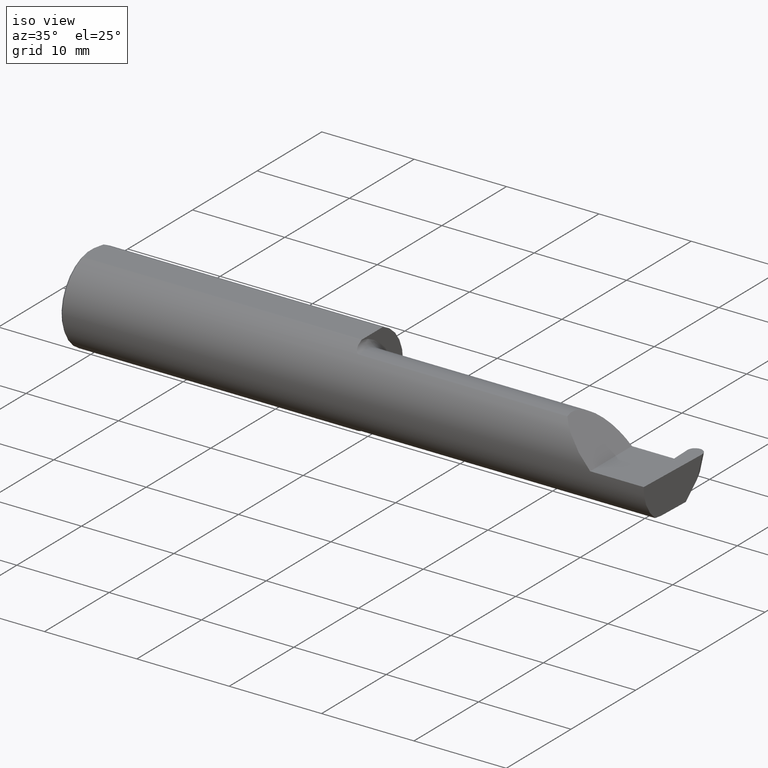
[diagram: clean part render]
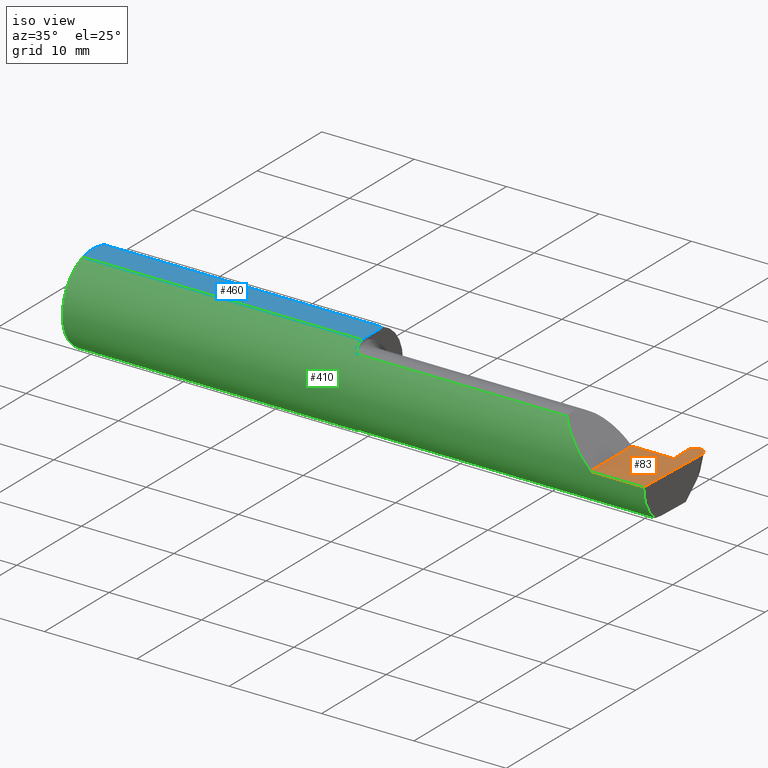
[diagram: same view with three faces highlighted in distinct colors, each labeled with its STEP entity id]
A machine part, iso view with three faces highlighted in distinct colors.
Their STEP definitions:

[orange] entity #83 — the highlighted planar face has unit normal (-0, 0, -1).
#1 = ORIENTED_EDGE ( 'NONE', *, *, #168, .F. ) ;
#7 = DIRECTION ( 'NONE',  ( -1.224646799147353947E-16, 0.000000000000000000, -1.000000000000000000 ) ) ;
#8 = CARTESIAN_POINT ( 'NONE',  ( 2.436235694025149279, 0.1704329581048291409, 7.809760431069554296E-18 ) ) ;
#35 = LINE ( 'NONE', #126, #350 ) ;
#47 = VERTEX_POINT ( 'NONE', #277 ) ;
#48 = EDGE_CURVE ( 'NONE', #344, #690, #270, .T. ) ;
#59 = ORIENTED_EDGE ( 'NONE', *, *, #671, .F. ) ;
#61 = VERTEX_POINT ( 'NONE', #660 ) ;
#74 = LINE ( 'NONE', #399, #316 ) ;
#83 = ADVANCED_FACE ( 'NONE', ( #213 ), #487, .F. ) ;
#88 = CARTESIAN_POINT ( 'NONE',  ( 2.468721519699850209, 0.1846500000000000363, 0.000000000000000000 ) ) ;
#92 = ORIENTED_EDGE ( 'NONE', *, *, #48, .T. ) ;
#115 = CARTESIAN_POINT ( 'NONE',  ( 2.499932917084233264, 0.1506083980881225415, 0.000000000000000000 ) ) ;
#116 = CARTESIAN_POINT ( 'NONE',  ( 2.436927982915767288, 0.1506083980881225137, 0.000000000000000000 ) ) ;
#123 = DIRECTION ( 'NONE',  ( -0.03489949670249308661, -0.9993908270190960952, 0.000000000000000000 ) ) ;
#126 = CARTESIAN_POINT ( 'NONE',  ( -0.001039370078739994957, 0.1846500000000000363, 0.000000000000000000 ) ) ;
#129 = VERTEX_POINT ( 'NONE', #177 ) ;
#147 = LINE ( 'NONE', #481, #324 ) ;
#152 = ORIENTED_EDGE ( 'NONE', *, *, #429, .F. ) ;
#161 = VERTEX_POINT ( 'NONE', #501 ) ;
#163 = CARTESIAN_POINT ( 'NONE',  ( 2.436927982915767288, 0.1506083980881225137, 0.000000000000000000 ) ) ;
#166 = CARTESIAN_POINT ( 'NONE',  ( 2.439859874782298377, 0.06664999999999998703, 0.000000000000000000 ) ) ;
#168 = EDGE_CURVE ( 'NONE', #61, #129, #342, .T. ) ;
#172 = DIRECTION ( 'NONE',  ( 1.000000000000000000, 6.902170632284375996E-17, 0.000000000000000000 ) ) ;
#175 = VERTEX_POINT ( 'NONE', #506 ) ;
#177 = CARTESIAN_POINT ( 'NONE',  ( 2.488131149766799943, -0.1873499999999999888, 0.000000000000000000 ) ) ;
#213 = FACE_OUTER_BOUND ( 'NONE', #242, .T. ) ;
#216 = ORIENTED_EDGE ( 'NONE', *, *, #269, .F. ) ;
#220 = VERTEX_POINT ( 'NONE', #622 ) ;
#223 = VECTOR ( 'NONE', #123, 39.37007874015747433 ) ;
#242 = EDGE_LOOP ( 'NONE', ( #247, #92, #216, #59, #254, #152, #251, #1, #601 ) ) ;
#247 = ORIENTED_EDGE ( 'NONE', *, *, #390, .F. ) ;
#251 = ORIENTED_EDGE ( 'NONE', *, *, #489, .F. ) ;
#254 = ORIENTED_EDGE ( 'NONE', *, *, #380, .F. ) ;
#258 = EDGE_CURVE ( 'NONE', #61, #420, #495, .T. ) ;
#264 = VECTOR ( 'NONE', #572, 39.37007874015748143 ) ;
#269 = EDGE_CURVE ( 'NONE', #175, #690, #147, .T. ) ;
#270 =( BOUNDED_CURVE ( )  B_SPLINE_CURVE ( 3, ( #499, #497, #8, #163 ),
 .UNSPECIFIED., .F., .T. ) 
 B_SPLINE_CURVE_WITH_KNOTS ( ( 4, 4 ),
 ( 3.057488531086369754, 4.656081685705084183 ),
 .UNSPECIFIED. ) 
 CURVE ( )  GEOMETRIC_REPRESENTATION_ITEM ( )  RATIONAL_B_SPLINE_CURVE ( ( 1.000000000000000000, 0.7981407609938104830, 0.7981407609938104830, 1.000000000000000000 ) ) 
 REPRESENTATION_ITEM ( '' )  );
#277 = CARTESIAN_POINT ( 'NONE',  ( 2.260000000000000231, -0.1873499999999999888, 2.939152317953647352E-17 ) ) ;
#285 = DIRECTION ( 'NONE',  ( 1.000000000000000000, 7.488084056613327882E-15, -0.000000000000000000 ) ) ;
#316 = VECTOR ( 'NONE', #172, 39.37007874015748143 ) ;
#324 = VECTOR ( 'NONE', #369, 39.37007874015748143 ) ;
#339 = CARTESIAN_POINT ( 'NONE',  ( 2.500625205974851273, 0.1704329581048291409, -1.247844596711688058E-17 ) ) ;
#342 = LINE ( 'NONE', #613, #223 ) ;
#344 = VERTEX_POINT ( 'NONE', #533 ) ;
#350 = VECTOR ( 'NONE', #567, 39.37007874015748143 ) ;
#369 = DIRECTION ( 'NONE',  ( -0.03489949670249346131, 0.9993908270190959842, -0.000000000000000000 ) ) ;
#380 = EDGE_CURVE ( 'NONE', #161, #220, #74, .T. ) ;
#390 = EDGE_CURVE ( 'NONE', #344, #420, #35, .T. ) ;
#399 = CARTESIAN_POINT ( 'NONE',  ( 1.199999999999999956, 0.06664999999999984825, 1.592040838891559588E-16 ) ) ;
#414 = DIRECTION ( 'NONE',  ( -0.000000000000000000, 1.000000000000000000, -0.000000000000000000 ) ) ;
#420 = VERTEX_POINT ( 'NONE', #695 ) ;
#423 = VECTOR ( 'NONE', #285, 39.37007874015748143 ) ;
#429 = EDGE_CURVE ( 'NONE', #47, #161, #691, .T. ) ;
#441 = CARTESIAN_POINT ( 'NONE',  ( 2.500000000000000000, -0.2500000000000000555, 0.000000000000000000 ) ) ;
#452 = CARTESIAN_POINT ( 'NONE',  ( 2.260000000000000231, -0.2500000000000000555, 2.939152317953647352E-17 ) ) ;
#481 = CARTESIAN_POINT ( 'NONE',  ( 2.436880131316879083, 0.1519786885938757270, 0.000000000000000000 ) ) ;
#487 = PLANE ( 'NONE',  #608 ) ;
#489 = EDGE_CURVE ( 'NONE', #129, #47, #504, .T. ) ;
#495 =( BOUNDED_CURVE ( )  B_SPLINE_CURVE ( 3, ( #115, #339, #646, #88 ),
 .UNSPECIFIED., .F., .T. ) 
 B_SPLINE_CURVE_WITH_KNOTS ( ( 4, 4 ),
 ( 1.627103621474502049, 3.225696776093215590 ),
 .UNSPECIFIED. ) 
 CURVE ( )  GEOMETRIC_REPRESENTATION_ITEM ( )  RATIONAL_B_SPLINE_CURVE ( ( 1.000000000000000000, 0.7981407609938108161, 0.7981407609938108161, 1.000000000000000000 ) ) 
 REPRESENTATION_ITEM ( '' )  );
#497 = CARTESIAN_POINT ( 'NONE',  ( 2.449270737010766030, 0.1846499999999998975, 6.213428064161130250E-18 ) ) ;
#499 = CARTESIAN_POINT ( 'NONE',  ( 2.468139380300150343, 0.1846500000000000363, 0.000000000000000000 ) ) ;
#501 = CARTESIAN_POINT ( 'NONE',  ( 2.260000000000000231, 0.06664999999999993152, 1.592040838891559588E-16 ) ) ;
#504 = LINE ( 'NONE', #558, #264 ) ;
#506 = CARTESIAN_POINT ( 'NONE',  ( 2.439859874782298377, 0.06664999999999998703, 0.000000000000000000 ) ) ;
#508 = LINE ( 'NONE', #166, #423 ) ;
#533 = CARTESIAN_POINT ( 'NONE',  ( 2.468139380300150343, 0.1846500000000000363, 0.000000000000000000 ) ) ;
#558 = CARTESIAN_POINT ( 'NONE',  ( 3.749399456654646757E-32, -0.1873499999999999610, 3.061616997868383634E-16 ) ) ;
#567 = DIRECTION ( 'NONE',  ( 1.000000000000000000, -0.000000000000000000, -0.000000000000000000 ) ) ;
#572 = DIRECTION ( 'NONE',  ( -1.000000000000000000, -0.000000000000000000, -0.000000000000000000 ) ) ;
#601 = ORIENTED_EDGE ( 'NONE', *, *, #258, .T. ) ;
#608 = AXIS2_PLACEMENT_3D ( 'NONE', #441, #7, #663 ) ;
#613 = CARTESIAN_POINT ( 'NONE',  ( 2.499980768683121024, 0.1519786885938757826, 0.000000000000000000 ) ) ;
#622 = CARTESIAN_POINT ( 'NONE',  ( 2.430739223982273156, 0.06664999999999991764, 0.000000000000000000 ) ) ;
#640 = VECTOR ( 'NONE', #414, 39.37007874015748143 ) ;
#646 = CARTESIAN_POINT ( 'NONE',  ( 2.487590162989234077, 0.1846499999999998698, -1.088211360020845268E-17 ) ) ;
#660 = CARTESIAN_POINT ( 'NONE',  ( 2.499932917084233264, 0.1506083980881225415, 0.000000000000000000 ) ) ;
#663 = DIRECTION ( 'NONE',  ( -1.000000000000000000, 0.000000000000000000, 1.224646799147353947E-16 ) ) ;
#671 = EDGE_CURVE ( 'NONE', #220, #175, #508, .T. ) ;
#690 = VERTEX_POINT ( 'NONE', #116 ) ;
#691 = LINE ( 'NONE', #452, #640 ) ;
#695 = CARTESIAN_POINT ( 'NONE',  ( 2.468721519699850209, 0.1846500000000000363, 0.000000000000000000 ) ) ;

[blue] entity #460 — the highlighted planar face has unit normal (0, 0, 1).
#33 = ORIENTED_EDGE ( 'NONE', *, *, #117, .T. ) ;
#67 = LINE ( 'NONE', #278, #237 ) ;
#69 = EDGE_LOOP ( 'NONE', ( #150, #433, #33, #222, #281, #426 ) ) ;
#70 = CARTESIAN_POINT ( 'NONE',  ( 2.876828993045917215, 0.1873499999999998500, 0.1763499999999999235 ) ) ;
#79 = DIRECTION ( 'NONE',  ( 1.000000000000000000, 0.000000000000000000, -0.000000000000000000 ) ) ;
#82 = FACE_OUTER_BOUND ( 'NONE', #69, .T. ) ;
#85 = CARTESIAN_POINT ( 'NONE',  ( 0.000000000000000000, 0.01880691362238934988, 0.1763499999999999235 ) ) ;
#90 = VERTEX_POINT ( 'NONE', #173 ) ;
#100 = EDGE_CURVE ( 'NONE', #124, #320, #559, .T. ) ;
#117 = EDGE_CURVE ( 'NONE', #90, #184, #67, .T. ) ;
#124 = VERTEX_POINT ( 'NONE', #573 ) ;
#135 = PLANE ( 'NONE',  #215 ) ;
#150 = ORIENTED_EDGE ( 'NONE', *, *, #571, .T. ) ;
#173 = CARTESIAN_POINT ( 'NONE',  ( 1.199999999999999956, 0.06325108694718235836, 0.1763499999999999235 ) ) ;
#184 = VERTEX_POINT ( 'NONE', #556 ) ;
#194 = VECTOR ( 'NONE', #584, 39.37007874015748143 ) ;
#211 = CARTESIAN_POINT ( 'NONE',  ( 1.199999999999999956, -0.06325108694718287183, 0.1763499999999999235 ) ) ;
#215 = AXIS2_PLACEMENT_3D ( 'NONE', #70, #575, #79 ) ;
#222 = ORIENTED_EDGE ( 'NONE', *, *, #347, .F. ) ;
#225 = CARTESIAN_POINT ( 'NONE',  ( 0.005151108632379722968, -0.04888864921576022843, 0.1763499999999999235 ) ) ;
#237 = VECTOR ( 'NONE', #283, 39.37007874015748143 ) ;
#248 = DIRECTION ( 'NONE',  ( 1.000000000000000000, 0.000000000000000000, 0.000000000000000000 ) ) ;
#249 = CARTESIAN_POINT ( 'NONE',  ( 1.199999999999999956, 0.1873499999999997390, 0.1763499999999999235 ) ) ;
#255 = B_SPLINE_CURVE_WITH_KNOTS ( 'NONE', 3,
 ( #85, #363, #474, #310 ),
 .UNSPECIFIED., .F., .F.,
 ( 4, 4 ),
 ( 0.01188664626022242071, 0.01304646959483746725 ),
 .UNSPECIFIED. ) ;
#278 = CARTESIAN_POINT ( 'NONE',  ( 0.000000000000000000, 0.06325108694718235836, 0.1763499999999999235 ) ) ;
#281 = ORIENTED_EDGE ( 'NONE', *, *, #100, .F. ) ;
#283 = DIRECTION ( 'NONE',  ( -1.000000000000000000, -0.000000000000000000, -0.000000000000000000 ) ) ;
#310 = CARTESIAN_POINT ( 'NONE',  ( 0.01000000000000013205, 0.06325108694718235836, 0.1763499999999999235 ) ) ;
#320 = VERTEX_POINT ( 'NONE', #424 ) ;
#332 = EDGE_CURVE ( 'NONE', #551, #90, #431, .T. ) ;
#347 = EDGE_CURVE ( 'NONE', #320, #184, #255, .T. ) ;
#352 = DIRECTION ( 'NONE',  ( -0.000000000000000000, 1.000000000000000000, -0.000000000000000000 ) ) ;
#358 = CARTESIAN_POINT ( 'NONE',  ( 0.01000000000000013205, -0.06325108694718235836, 0.1763499999999999235 ) ) ;
#361 = CARTESIAN_POINT ( 'NONE',  ( 0.01000000000000013205, -0.06325108694718235836, 0.1763499999999999235 ) ) ;
#363 = CARTESIAN_POINT ( 'NONE',  ( 0.001616639753276021213, 0.03405189565400638246, 0.1763499999999999235 ) ) ;
#396 = CARTESIAN_POINT ( 'NONE',  ( 0.000000000000000000, 0.1873499999999998500, 0.1763499999999999235 ) ) ;
#424 = CARTESIAN_POINT ( 'NONE',  ( 0.000000000000000000, 0.01880691362238934988, 0.1763499999999999235 ) ) ;
#426 = ORIENTED_EDGE ( 'NONE', *, *, #444, .F. ) ;
#431 = LINE ( 'NONE', #249, #194 ) ;
#433 = ORIENTED_EDGE ( 'NONE', *, *, #332, .T. ) ;
#444 = EDGE_CURVE ( 'NONE', #583, #124, #674, .T. ) ;
#460 = ADVANCED_FACE ( 'NONE', ( #82 ), #135, .T. ) ;
#474 = CARTESIAN_POINT ( 'NONE',  ( 0.005155213631852488369, 0.04890080824240059659, 0.1763499999999999235 ) ) ;
#505 = VECTOR ( 'NONE', #352, 39.37007874015748143 ) ;
#525 = CARTESIAN_POINT ( 'NONE',  ( 0.001595548104417008695, -0.03385300050298640367, 0.1763499999999999235 ) ) ;
#551 = VERTEX_POINT ( 'NONE', #211 ) ;
#556 = CARTESIAN_POINT ( 'NONE',  ( 0.01000000000000013205, 0.06325108694718235836, 0.1763499999999999235 ) ) ;
#559 = LINE ( 'NONE', #396, #505 ) ;
#571 = EDGE_CURVE ( 'NONE', #583, #551, #657, .T. ) ;
#573 = CARTESIAN_POINT ( 'NONE',  ( 0.000000000000000000, -0.01880691362238934641, 0.1763499999999999235 ) ) ;
#575 = DIRECTION ( 'NONE',  ( 0.000000000000000000, 0.000000000000000000, 1.000000000000000000 ) ) ;
#583 = VERTEX_POINT ( 'NONE', #361 ) ;
#584 = DIRECTION ( 'NONE',  ( -6.902170632284375996E-17, 1.000000000000000000, 0.000000000000000000 ) ) ;
#620 = CARTESIAN_POINT ( 'NONE',  ( 0.000000000000000000, -0.01880691362238934641, 0.1763499999999999235 ) ) ;
#655 = CARTESIAN_POINT ( 'NONE',  ( 0.000000000000000000, -0.06325108694718235836, 0.1763499999999999235 ) ) ;
#657 = LINE ( 'NONE', #655, #662 ) ;
#662 = VECTOR ( 'NONE', #248, 39.37007874015748143 ) ;
#674 = B_SPLINE_CURVE_WITH_KNOTS ( 'NONE', 3,
 ( #358, #225, #525, #620 ),
 .UNSPECIFIED., .F., .F.,
 ( 4, 4 ),
 ( 0.009771445421851331775, 0.01092787937989104369 ),
 .UNSPECIFIED. ) ;

[green] entity #410 — the highlighted cylindrical surface (partial cylindrical patch) has radius 4.7587 mm, axis along (-1, -0, -0).
#2 = ORIENTED_EDGE ( 'NONE', *, *, #165, .F. ) ;
#15 = CARTESIAN_POINT ( 'NONE',  ( 1.222161949849308371, -0.1172600179964063821, 0.1461167706989258686 ) ) ;
#20 = FACE_OUTER_BOUND ( 'NONE', #484, .T. ) ;
#22 = AXIS2_PLACEMENT_3D ( 'NONE', #60, #55, #492 ) ;
#25 = CARTESIAN_POINT ( 'NONE',  ( 1.200353553376445115, -0.07868116735658681193, 0.1701139256562800572 ) ) ;
#26 = VERTEX_POINT ( 'NONE', #267 ) ;
#31 = CARTESIAN_POINT ( 'NONE',  ( 1.219511795768554840, -0.1163687266324236191, -0.1468371510166787963 ) ) ;
#32 = DIRECTION ( 'NONE',  ( -1.000000000000000000, -6.902170632284375996E-17, -0.000000000000000000 ) ) ;
#47 = VERTEX_POINT ( 'NONE', #277 ) ;
#55 = DIRECTION ( 'NONE',  ( 1.000000000000000000, 6.902170632284375996E-17, 0.000000000000000000 ) ) ;
#60 = CARTESIAN_POINT ( 'NONE',  ( 1.199999999999999956, 0.000000000000000000, 0.000000000000000000 ) ) ;
#62 = CARTESIAN_POINT ( 'NONE',  ( 1.225000000000000089, -0.1172600179964007477, 0.1461167706989301984 ) ) ;
#64 = CARTESIAN_POINT ( 'NONE',  ( 0.01000000000000013205, 0.000000000000000000, 0.000000000000000000 ) ) ;
#67 = LINE ( 'NONE', #278, #237 ) ;
#71 = CIRCLE ( 'NONE', #704, 0.1873499999999999888 ) ;
#87 = CARTESIAN_POINT ( 'NONE',  ( 2.488026713523222799, -0.1172600179964006922, -0.1461167706989302817 ) ) ;
#90 = VERTEX_POINT ( 'NONE', #173 ) ;
#117 = EDGE_CURVE ( 'NONE', #90, #184, #67, .T. ) ;
#118 = CARTESIAN_POINT ( 'NONE',  ( 1.202960551809340251, -0.09317341542745753713, -0.1626248379125196653 ) ) ;
#122 = DIRECTION ( 'NONE',  ( 0.000000000000000000, 0.000000000000000000, 1.000000000000000000 ) ) ;
#129 = VERTEX_POINT ( 'NONE', #177 ) ;
#130 = CARTESIAN_POINT ( 'NONE',  ( 1.199999999999999956, -0.06851976604679066440, -0.1743704796142198643 ) ) ;
#133 = ORIENTED_EDGE ( 'NONE', *, *, #683, .F. ) ;
#137 = CARTESIAN_POINT ( 'NONE',  ( 2.488026713523222799, -0.1172600179964006922, -0.1461167706989302817 ) ) ;
#142 = ORIENTED_EDGE ( 'NONE', *, *, #489, .T. ) ;
#165 = EDGE_CURVE ( 'NONE', #532, #201, #568, .T. ) ;
#171 = ORIENTED_EDGE ( 'NONE', *, *, #245, .F. ) ;
#173 = CARTESIAN_POINT ( 'NONE',  ( 1.199999999999999956, 0.06325108694718235836, 0.1763499999999999235 ) ) ;
#177 = CARTESIAN_POINT ( 'NONE',  ( 2.488131149766799943, -0.1873499999999999888, 0.000000000000000000 ) ) ;
#184 = VERTEX_POINT ( 'NONE', #556 ) ;
#185 = CARTESIAN_POINT ( 'NONE',  ( 0.000000000000000000, 0.000000000000000000, 0.000000000000000000 ) ) ;
#188 = CARTESIAN_POINT ( 'NONE',  ( 0.01000000000000013205, 0.000000000000000000, 0.000000000000000000 ) ) ;
#198 = ORIENTED_EDGE ( 'NONE', *, *, #362, .F. ) ;
#199 = EDGE_CURVE ( 'NONE', #583, #26, #552, .T. ) ;
#201 = VERTEX_POINT ( 'NONE', #346 ) ;
#211 = CARTESIAN_POINT ( 'NONE',  ( 1.199999999999999956, -0.06325108694718287183, 0.1763499999999999235 ) ) ;
#214 = CARTESIAN_POINT ( 'NONE',  ( 2.488131149766799943, -0.1873499999999999888, 0.000000000000000000 ) ) ;
#218 = ORIENTED_EDGE ( 'NONE', *, *, #571, .F. ) ;
#228 = ORIENTED_EDGE ( 'NONE', *, *, #480, .F. ) ;
#229 = CARTESIAN_POINT ( 'NONE',  ( 1.213203859946833996, -0.1120371980050639676, -0.1501764597936558199 ) ) ;
#231 = ORIENTED_EDGE ( 'NONE', *, *, #117, .F. ) ;
#232 = CARTESIAN_POINT ( 'NONE',  ( 1.206304331342287650, -0.1022198306720692035, -0.1570962426853817762 ) ) ;
#233 = EDGE_CURVE ( 'NONE', #47, #201, #427, .T. ) ;
#237 = VECTOR ( 'NONE', #283, 39.37007874015748143 ) ;
#239 = CARTESIAN_POINT ( 'NONE',  ( 2.202189699843948745, -0.1873500000000000443, 0.05781030015605096578 ) ) ;
#244 = CARTESIAN_POINT ( 'NONE',  ( 1.222174967710399462, -0.1172600179964008033, -0.1461167706989301707 ) ) ;
#245 = EDGE_CURVE ( 'NONE', #587, #394, #693, .T. ) ;
#246 = DIRECTION ( 'NONE',  ( 1.000000000000000000, 6.902170632284375996E-17, 0.000000000000000000 ) ) ;
#248 = DIRECTION ( 'NONE',  ( 1.000000000000000000, 0.000000000000000000, 0.000000000000000000 ) ) ;
#264 = VECTOR ( 'NONE', #572, 39.37007874015748143 ) ;
#265 = CARTESIAN_POINT ( 'NONE',  ( 2.487084196965268390, -0.1623470442677541203, -0.1099340280425337990 ) ) ;
#267 = CARTESIAN_POINT ( 'NONE',  ( 0.01000000000000013205, 0.000000000000000000, -0.1873499999999999888 ) ) ;
#268 = CARTESIAN_POINT ( 'NONE',  ( 1.225000000000000089, -0.1172600179964007477, 0.1461167706989301984 ) ) ;
#277 = CARTESIAN_POINT ( 'NONE',  ( 2.260000000000000231, -0.1873499999999999888, 2.939152317953647352E-17 ) ) ;
#278 = CARTESIAN_POINT ( 'NONE',  ( 0.000000000000000000, 0.06325108694718235836, 0.1763499999999999235 ) ) ;
#280 = CARTESIAN_POINT ( 'NONE',  ( 1.208475602106621416, -0.1064978748893407601, 0.1542035505680382779 ) ) ;
#283 = DIRECTION ( 'NONE',  ( -1.000000000000000000, -0.000000000000000000, -0.000000000000000000 ) ) ;
#294 = CARTESIAN_POINT ( 'NONE',  ( 1.225000000000000089, -0.1172600179964008171, -0.1461167706989301984 ) ) ;
#295 = CARTESIAN_POINT ( 'NONE',  ( 2.113883229301068312, -0.1172600179964008726, 0.1461167706989301429 ) ) ;
#298 = CARTESIAN_POINT ( 'NONE',  ( 1.215028532764138580, -0.1137241120808236416, -0.1488947809299402958 ) ) ;
#299 = CARTESIAN_POINT ( 'NONE',  ( 2.260000000000000231, -0.1873499999999999888, 2.939152317953647352E-17 ) ) ;
#302 = VECTOR ( 'NONE', #462, 39.37007874015748143 ) ;
#303 = DIRECTION ( 'NONE',  ( 1.000000000000000000, 0.000000000000000000, 0.000000000000000000 ) ) ;
#305 = CIRCLE ( 'NONE', #22, 0.1873499999999999888 ) ;
#318 = ORIENTED_EDGE ( 'NONE', *, *, #233, .T. ) ;
#333 = CARTESIAN_POINT ( 'NONE',  ( 1.206287624083520305, -0.1021858045380147212, 0.1571187174372874473 ) ) ;
#335 = VECTOR ( 'NONE', #32, 39.37007874015748143 ) ;
#336 = CARTESIAN_POINT ( 'NONE',  ( 1.201829077486400443, -0.08839624499054657414, 0.1652742498708036911 ) ) ;
#341 = CARTESIAN_POINT ( 'NONE',  ( 1.199999999999999956, -0.07368234487347199990, -0.1723418180300747837 ) ) ;
#345 = DIRECTION ( 'NONE',  ( 0.000000000000000000, 0.000000000000000000, -1.000000000000000000 ) ) ;
#346 = CARTESIAN_POINT ( 'NONE',  ( 2.113883229301068312, -0.1172600179964008726, 0.1461167706989301429 ) ) ;
#354 = CARTESIAN_POINT ( 'NONE',  ( 1.225000000000000089, -0.1172600179964008171, -0.1461167706989301984 ) ) ;
#361 = CARTESIAN_POINT ( 'NONE',  ( 0.01000000000000013205, -0.06325108694718235836, 0.1763499999999999235 ) ) ;
#362 = EDGE_CURVE ( 'NONE', #397, #90, #702, .T. ) ;
#373 = B_SPLINE_CURVE_WITH_KNOTS ( 'NONE', 3,
 ( #392, #401, #25, #336, #667, #333, #280, #454, #560, #386, #15, #62 ),
 .UNSPECIFIED., .F., .F.,
 ( 4, 2, 2, 2, 2, 4 ),
 ( 4.423516731080811751E-05, 0.0004615475116586734692, 0.0008788598560065388277, 0.001296172200354404240, 0.001504828372528336025, 0.001713484544702268027 ),
 .UNSPECIFIED. ) ;
#386 = CARTESIAN_POINT ( 'NONE',  ( 1.219481469043492083, -0.1163560528186167731, 0.1468472430636322268 ) ) ;
#392 = CARTESIAN_POINT ( 'NONE',  ( 1.199999999999999956, -0.06851976604679066440, 0.1743704796142198643 ) ) ;
#394 = VERTEX_POINT ( 'NONE', #294 ) ;
#397 = VERTEX_POINT ( 'NONE', #616 ) ;
#398 = EDGE_CURVE ( 'NONE', #26, #184, #71, .T. ) ;
#400 = DIRECTION ( 'NONE',  ( 0.000000000000000000, 0.000000000000000000, -1.000000000000000000 ) ) ;
#401 = CARTESIAN_POINT ( 'NONE',  ( 1.199999999999999956, -0.07367581953296710451, 0.1723443821957855171 ) ) ;
#407 = AXIS2_PLACEMENT_3D ( 'NONE', #64, #453, #400 ) ;
#409 = CARTESIAN_POINT ( 'NONE',  ( 1.208439486659306672, -0.1064616213911159376, -0.1542305641651500192 ) ) ;
#410 = ADVANCED_FACE ( 'NONE', ( #20 ), #520, .T. ) ;
#427 =( BOUNDED_CURVE ( )  B_SPLINE_CURVE ( 3, ( #299, #239, #467, #295 ),
 .UNSPECIFIED., .F., .T. ) 
 B_SPLINE_CURVE_WITH_KNOTS ( ( 4, 4 ),
 ( 4.712388980384688786, 5.606916381293135743 ),
 .UNSPECIFIED. ) 
 CURVE ( )  GEOMETRIC_REPRESENTATION_ITEM ( )  RATIONAL_B_SPLINE_CURVE ( ( 1.000000000000000000, 0.9344226172588803170, 0.9344226172588803170, 1.000000000000000000 ) ) 
 REPRESENTATION_ITEM ( '' )  );
#432 = VERTEX_POINT ( 'NONE', #562 ) ;
#434 = B_SPLINE_CURVE_WITH_KNOTS ( 'NONE', 3,
 ( #354, #244, #31, #298, #229, #409, #232, #118, #687, #625, #341, #130 ),
 .UNSPECIFIED., .F., .F.,
 ( 4, 2, 2, 2, 2, 4 ),
 ( 1.967976973692733563E-07, 0.0002120314145722270013, 0.0004238660314470846929, 0.0008475352651968001303, 0.001271204498946515568, 0.001694873732696231114 ),
 .UNSPECIFIED. ) ;
#449 = CARTESIAN_POINT ( 'NONE',  ( 1.830930450000000098, -0.1172600179964007477, 0.1461167706989302817 ) ) ;
#453 = DIRECTION ( 'NONE',  ( 1.000000000000000000, 0.000000000000000000, 0.000000000000000000 ) ) ;
#454 = CARTESIAN_POINT ( 'NONE',  ( 1.213163223656403167, -0.1119926267047279267, 0.1502091925606061362 ) ) ;
#462 = DIRECTION ( 'NONE',  ( 1.000000000000000000, 6.902170632284375996E-17, 0.000000000000000000 ) ) ;
#467 = CARTESIAN_POINT ( 'NONE',  ( 2.150065971957465294, -0.1623470442677542591, 0.1099340280425336325 ) ) ;
#471 = DIRECTION ( 'NONE',  ( 0.000000000000000000, 1.000000000000000000, 0.000000000000000000 ) ) ;
#480 = EDGE_CURVE ( 'NONE', #394, #397, #434, .T. ) ;
#484 = EDGE_LOOP ( 'NONE', ( #171, #654, #142, #318, #2, #133, #656, #218, #605, #537, #231, #198, #228 ) ) ;
#489 = EDGE_CURVE ( 'NONE', #129, #47, #504, .T. ) ;
#492 = DIRECTION ( 'NONE',  ( 0.000000000000000000, 1.000000000000000000, 0.000000000000000000 ) ) ;
#504 = LINE ( 'NONE', #558, #264 ) ;
#520 = CYLINDRICAL_SURFACE ( 'NONE', #578, 0.1873499999999999888 ) ;
#529 = CARTESIAN_POINT ( 'NONE',  ( 2.487121452143545408, -0.1873499999999999610, -0.05781030015605116007 ) ) ;
#532 = VERTEX_POINT ( 'NONE', #268 ) ;
#537 = ORIENTED_EDGE ( 'NONE', *, *, #398, .T. ) ;
#551 = VERTEX_POINT ( 'NONE', #211 ) ;
#552 = CIRCLE ( 'NONE', #407, 0.1873499999999999888 ) ;
#553 = AXIS2_PLACEMENT_3D ( 'NONE', #700, #246, #471 ) ;
#556 = CARTESIAN_POINT ( 'NONE',  ( 0.01000000000000013205, 0.06325108694718235836, 0.1763499999999999235 ) ) ;
#558 = CARTESIAN_POINT ( 'NONE',  ( 3.749399456654646757E-32, -0.1873499999999999610, 3.061616997868383634E-16 ) ) ;
#560 = CARTESIAN_POINT ( 'NONE',  ( 1.215004157323697376, -0.1137044537483317963, 0.1489098419202427304 ) ) ;
#562 = CARTESIAN_POINT ( 'NONE',  ( 1.199999999999999956, -0.06851976604679066440, 0.1743704796142198643 ) ) ;
#568 = LINE ( 'NONE', #449, #302 ) ;
#571 = EDGE_CURVE ( 'NONE', #583, #551, #657, .T. ) ;
#572 = DIRECTION ( 'NONE',  ( -1.000000000000000000, -0.000000000000000000, -0.000000000000000000 ) ) ;
#578 = AXIS2_PLACEMENT_3D ( 'NONE', #185, #630, #122 ) ;
#583 = VERTEX_POINT ( 'NONE', #361 ) ;
#587 = VERTEX_POINT ( 'NONE', #87 ) ;
#605 = ORIENTED_EDGE ( 'NONE', *, *, #199, .T. ) ;
#616 = CARTESIAN_POINT ( 'NONE',  ( 1.199999999999999956, -0.06851976604679066440, -0.1743704796142198643 ) ) ;
#625 = CARTESIAN_POINT ( 'NONE',  ( 1.200358271039144276, -0.07873626113568087115, -0.1700887912276896063 ) ) ;
#630 = DIRECTION ( 'NONE',  ( -1.000000000000000000, -0.000000000000000000, -0.000000000000000000 ) ) ;
#634 = EDGE_CURVE ( 'NONE', #551, #432, #305, .T. ) ;
#647 =( BOUNDED_CURVE ( )  B_SPLINE_CURVE ( 3, ( #137, #265, #529, #214 ),
 .UNSPECIFIED., .F., .T. ) 
 B_SPLINE_CURVE_WITH_KNOTS ( ( 4, 4 ),
 ( 5.852427379562188392, 6.746954780470635349 ),
 .UNSPECIFIED. ) 
 CURVE ( )  GEOMETRIC_REPRESENTATION_ITEM ( )  RATIONAL_B_SPLINE_CURVE ( ( 1.000000000000000000, 0.9344226172588803170, 0.9344226172588803170, 1.000000000000000000 ) ) 
 REPRESENTATION_ITEM ( '' )  );
#651 = EDGE_CURVE ( 'NONE', #587, #129, #647, .T. ) ;
#654 = ORIENTED_EDGE ( 'NONE', *, *, #651, .T. ) ;
#655 = CARTESIAN_POINT ( 'NONE',  ( 0.000000000000000000, -0.06325108694718235836, 0.1763499999999999235 ) ) ;
#656 = ORIENTED_EDGE ( 'NONE', *, *, #634, .F. ) ;
#657 = LINE ( 'NONE', #655, #662 ) ;
#662 = VECTOR ( 'NONE', #248, 39.37007874015748143 ) ;
#667 = CARTESIAN_POINT ( 'NONE',  ( 1.202945243422983035, -0.09312071749437438040, 0.1626553472577905168 ) ) ;
#683 = EDGE_CURVE ( 'NONE', #432, #532, #373, .T. ) ;
#684 = CARTESIAN_POINT ( 'NONE',  ( 1.830930450000000098, -0.1172600179964007477, -0.1461167706989302817 ) ) ;
#687 = CARTESIAN_POINT ( 'NONE',  ( 1.201843912362378086, -0.08846956905169094110, -0.1652353808078971809 ) ) ;
#693 = LINE ( 'NONE', #684, #335 ) ;
#700 = CARTESIAN_POINT ( 'NONE',  ( 1.199999999999999956, 0.000000000000000000, 0.000000000000000000 ) ) ;
#702 = CIRCLE ( 'NONE', #553, 0.1873499999999999888 ) ;
#704 = AXIS2_PLACEMENT_3D ( 'NONE', #188, #303, #345 ) ;